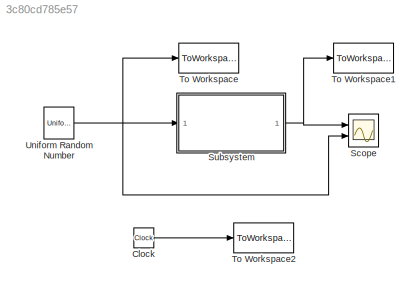
MODEL slx_3c80cd785e57
KIND model
CONFIG AbsTol = auto
CONFIG FixedStep = auto
CONFIG MaxStep = auto
CONFIG MinStep = auto
CONFIG RelTol = 1e-3
CONFIG SampleTimeConstraint = Unconstrained
CONFIG Solver = VariableStepAuto
CONFIG SolverMode = Auto
CONFIG SolverName = VariableStepAuto
CONFIG StartTime = 0.0
CONFIG StopTime = 300
BLOCK [Clock] Clock
BLOCK [Scope] Scope
  NumInputPorts = 2
  Ports = [2]
  ScopeSpecificationString = Simulink.scopes.TimeScopeBlockCfg('CurrentConfiguration', extmgr.ConfigurationSet(extmgr.Configuration('Core','General UI',true),extmgr.Configuration('Core','Source UI',true),extmgr.Configuration('Sources','WiredSimulink',true),extmgr.Configuration('Visuals','Time Domain',true,'SerializedDisplays',{struct('MinYLimReal','-1.78824','MaxYLimReal','10.58417','YLabelReal','','MinYLimMag','0.00000','Max...<+1376ch>
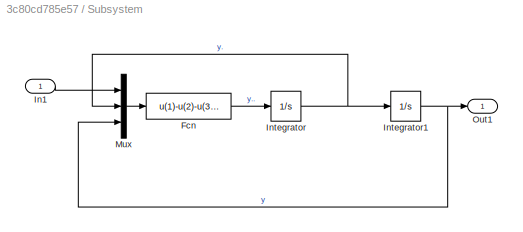
BLOCK [SubSystem] Subsystem
  Ports = [1, 1]
  RequestExecContextInheritance = off
  Variant = off
BLOCK [Fcn] Subsystem/Fcn
  Expr = u(1)-u(2)-u(3)^3
BLOCK [Inport] Subsystem/In1
  IconDisplay = Port number
BLOCK [Integrator] Subsystem/Integrator
  Ports = [1, 1]
BLOCK [Integrator] Subsystem/Integrator1
  Ports = [1, 1]
BLOCK [Mux] Subsystem/Mux
  DisplayOption = bar
  Inputs = 3
  Ports = [3, 1]
BLOCK [Outport] Subsystem/Out1
  IconDisplay = Port number
BLOCK [ToWorkspace] To Workspace
  FixptAsFi = on
  MaxDataPoints = inf
  Ports = [1]
  SampleTime = 0.2
  Save2DSignal = 3-D array (concatenate along third dimension)
  VariableName = Entrada
BLOCK [ToWorkspace] To Workspace1
  FixptAsFi = on
  MaxDataPoints = inf
  Ports = [1]
  SampleTime = 0.2
  Save2DSignal = 3-D array (concatenate along third dimension)
  VariableName = Salida
BLOCK [ToWorkspace] To Workspace2
  FixptAsFi = on
  MaxDataPoints = inf
  Ports = [1]
  SampleTime = 0.2
  Save2DSignal = 3-D array (concatenate along third dimension)
  VariableName = Tiempo
BLOCK [UniformRandomNumber] Uniform Random Number
  Maximum = 10
  Minimum = 0
  SampleTime = 10
LINE Clock:1 -> To Workspace2:1
LINE Subsystem/Fcn:1 -> Subsystem/Integrator:1
LINE Subsystem/In1:1 -> Subsystem/Mux:1
NET Subsystem/Integrator1:1 -> Subsystem/Mux:3, Subsystem/Out1:1
NET Subsystem/Integrator:1 -> Subsystem/Integrator1:1, Subsystem/Mux:2
LINE Subsystem/Mux:1 -> Subsystem/Fcn:1
NET Subsystem:1 -> Scope:1, To Workspace1:1
NET Uniform Random Number:1 -> Scope:2, Subsystem:1, To Workspace:1
note: NET lines group one-source signal fan-out (src -> all destinations, sorted); 1:1 wires keep LINE
